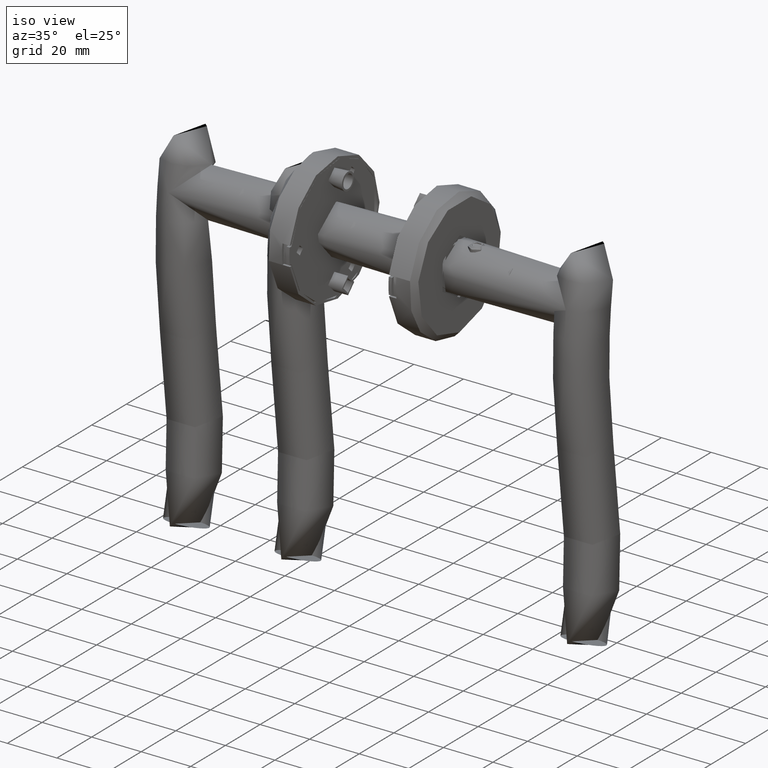
[diagram: clean part render]
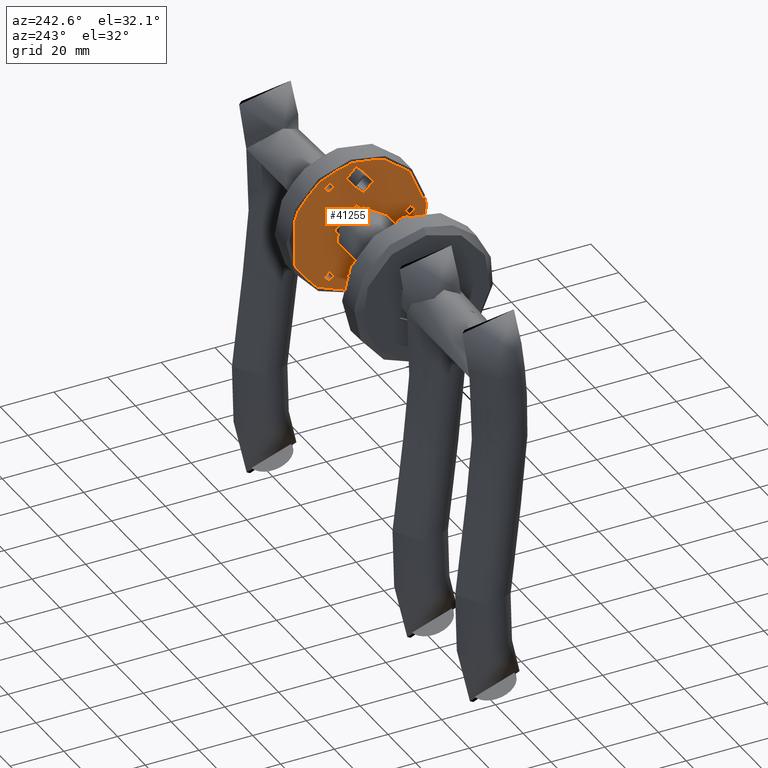
[diagram: tour spotlight — one face highlighted and labeled with its STEP entity id]
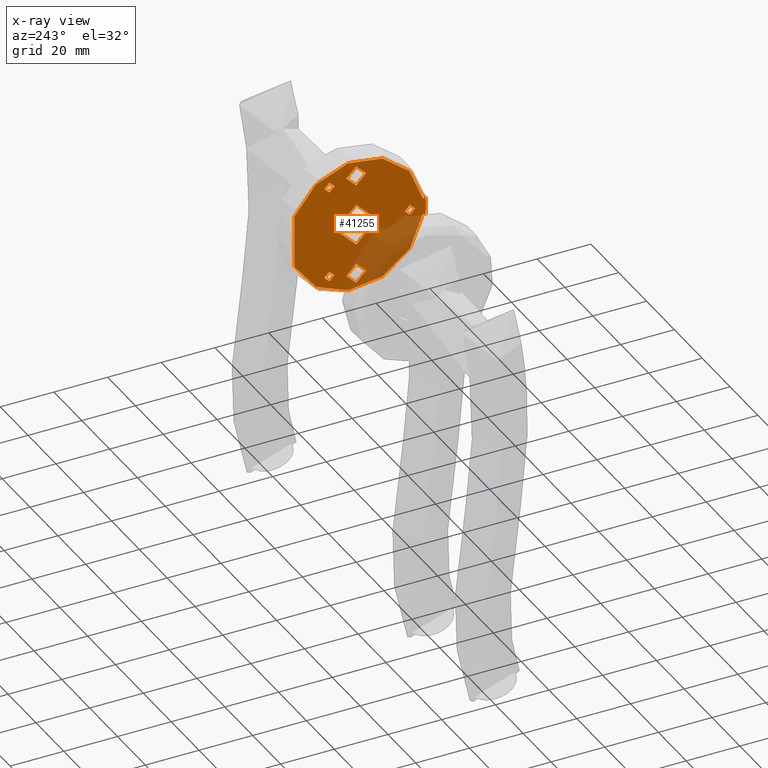
[diagram: x-ray of the same camera — body ghosted, this tour face saturated]
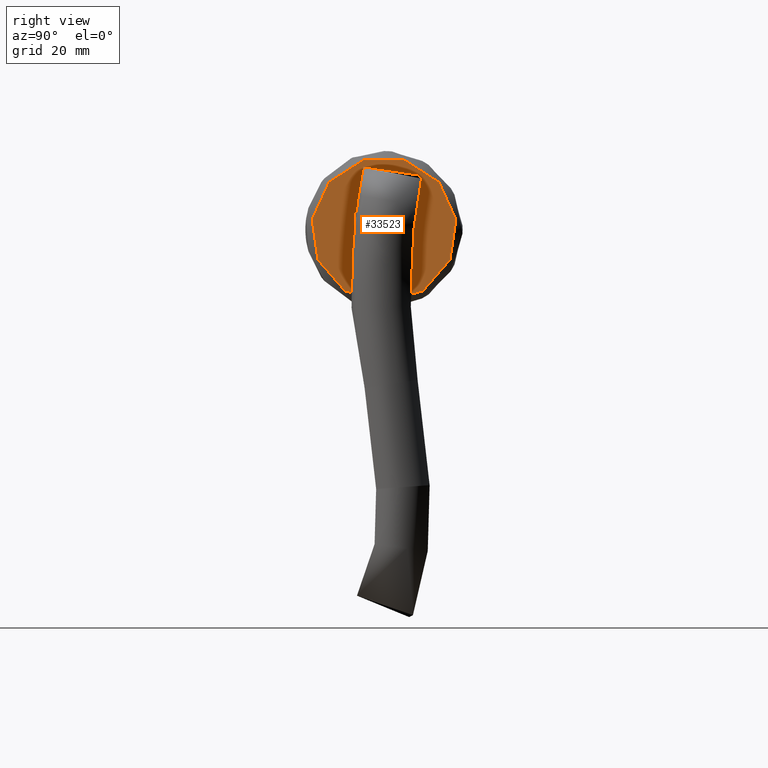
[diagram: tour spotlight — one face highlighted and labeled with its STEP entity id]
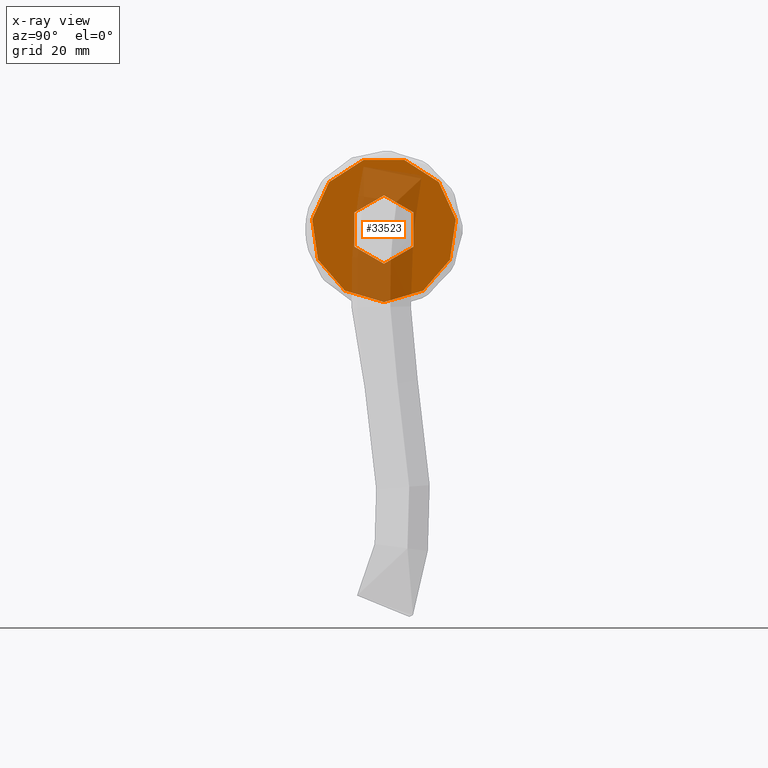
[diagram: x-ray of the same camera — body ghosted, this tour face saturated]
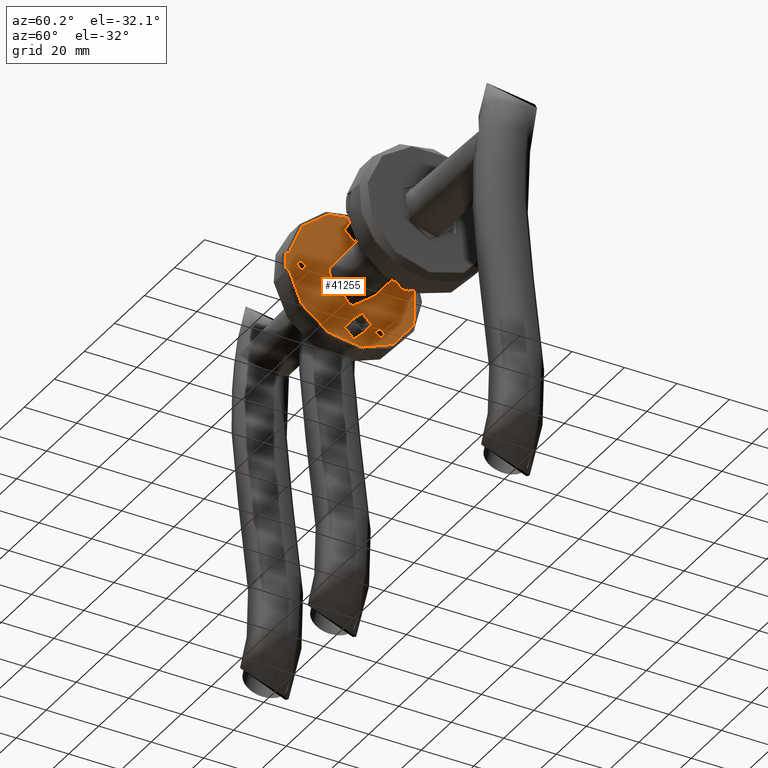
[diagram: tour spotlight — one face highlighted and labeled with its STEP entity id]
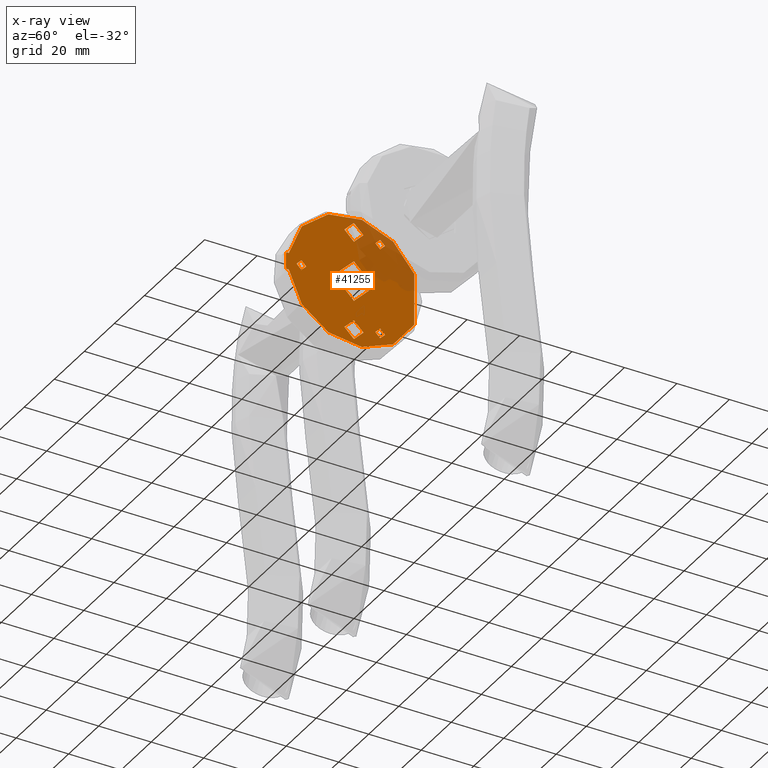
[diagram: x-ray of the same camera — body ghosted, this tour face saturated]
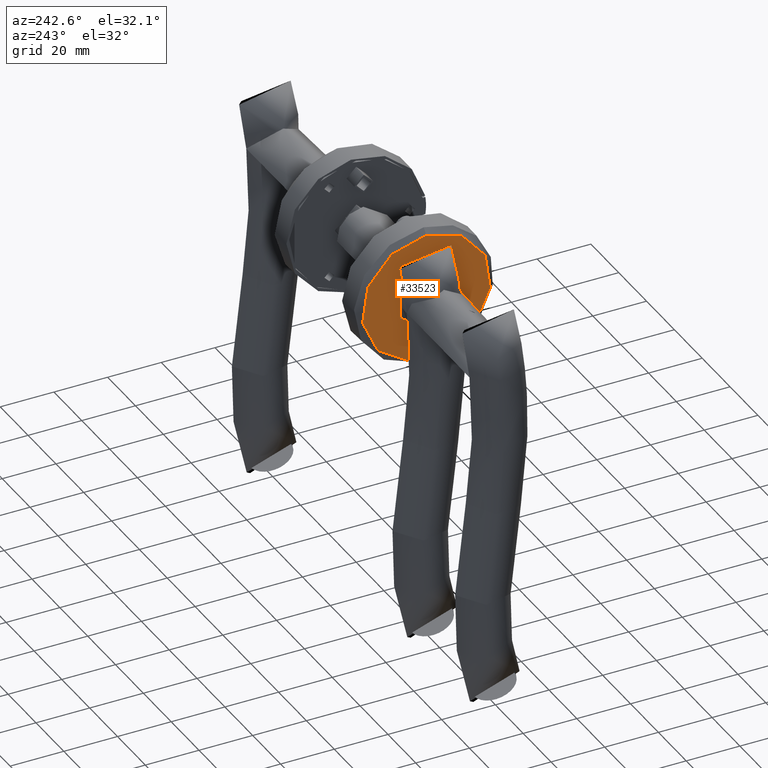
[diagram: tour spotlight — one face highlighted and labeled with its STEP entity id]
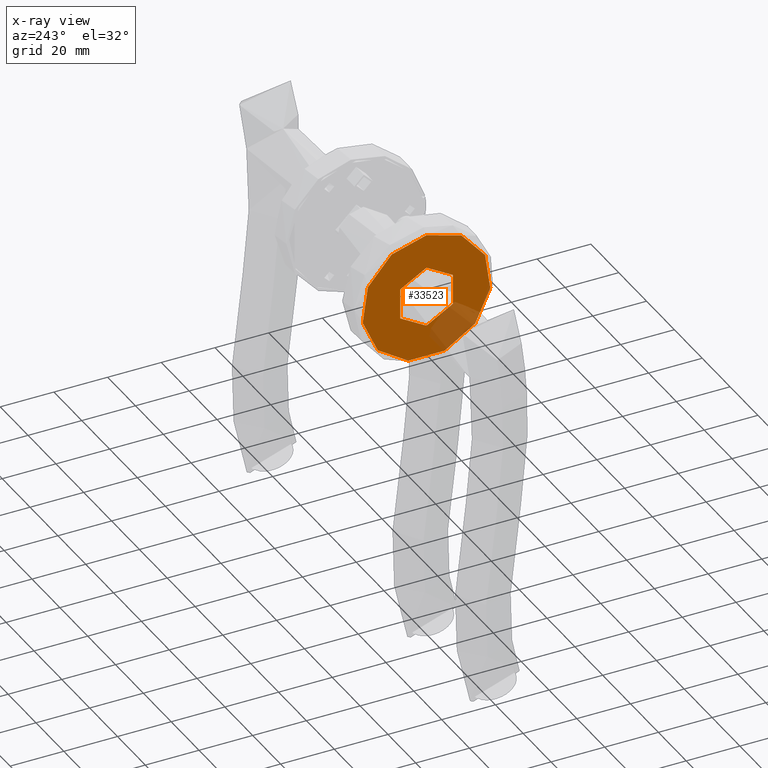
[diagram: x-ray of the same camera — body ghosted, this tour face saturated]
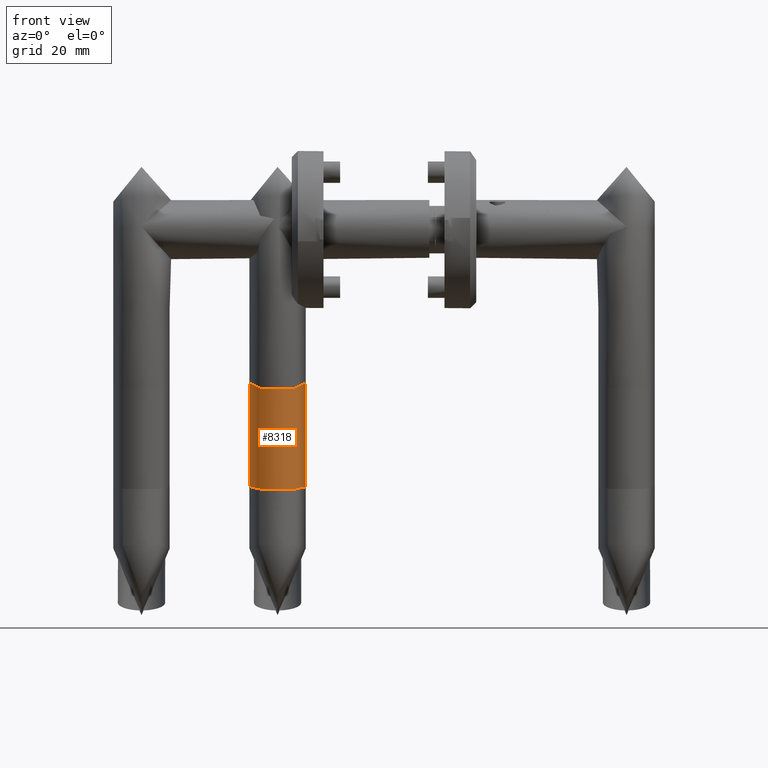
[diagram: tour spotlight — one face highlighted and labeled with its STEP entity id]
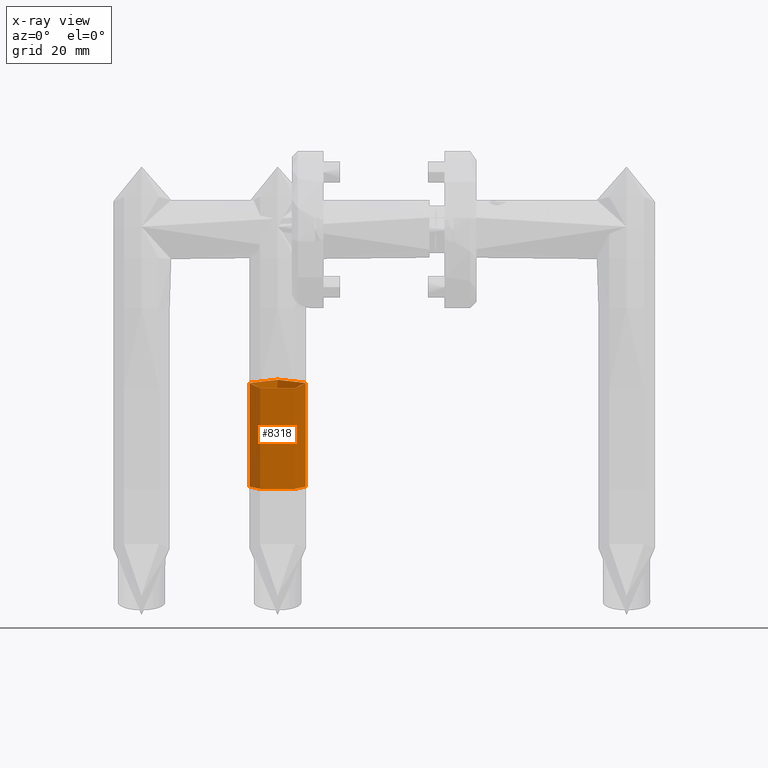
[diagram: x-ray of the same camera — body ghosted, this tour face saturated]
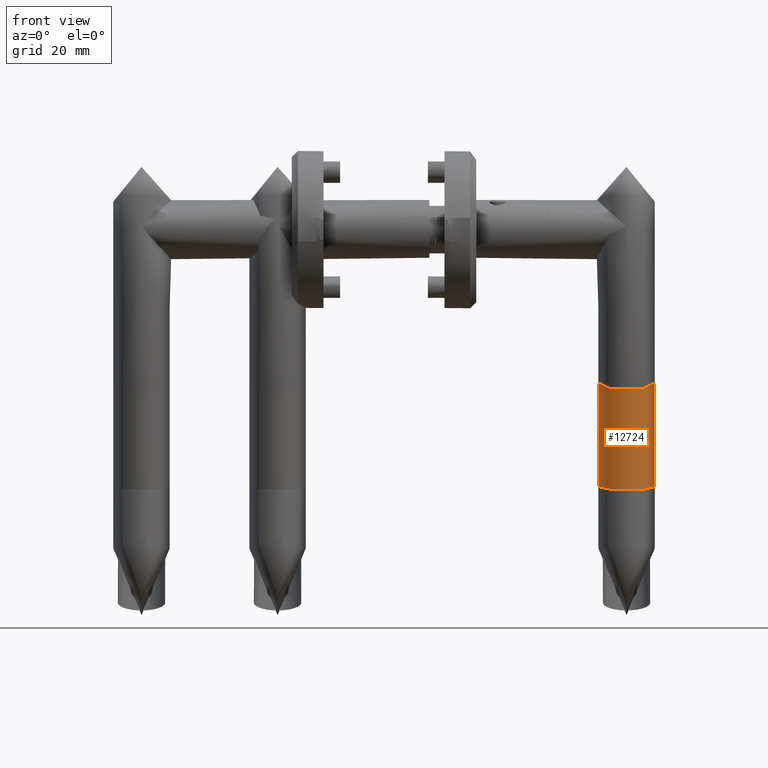
[diagram: tour spotlight — one face highlighted and labeled with its STEP entity id]
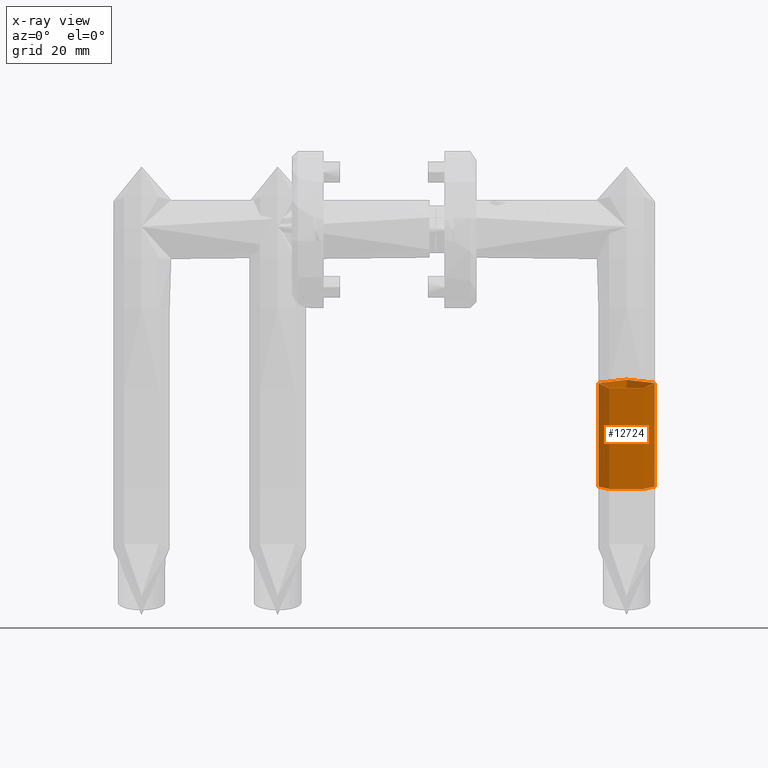
[diagram: x-ray of the same camera — body ghosted, this tour face saturated]
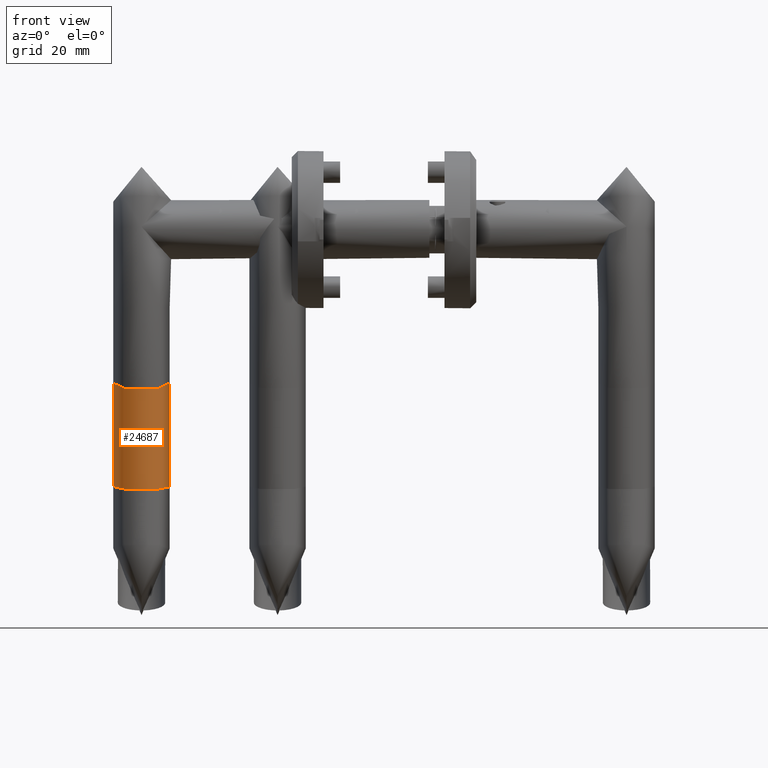
[diagram: tour spotlight — one face highlighted and labeled with its STEP entity id]
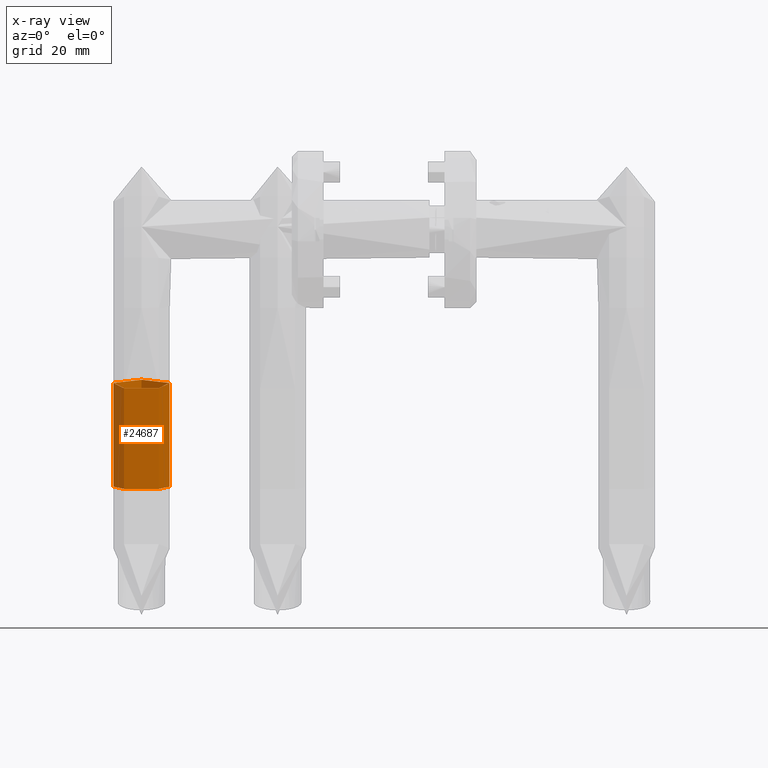
[diagram: x-ray of the same camera — body ghosted, this tour face saturated]
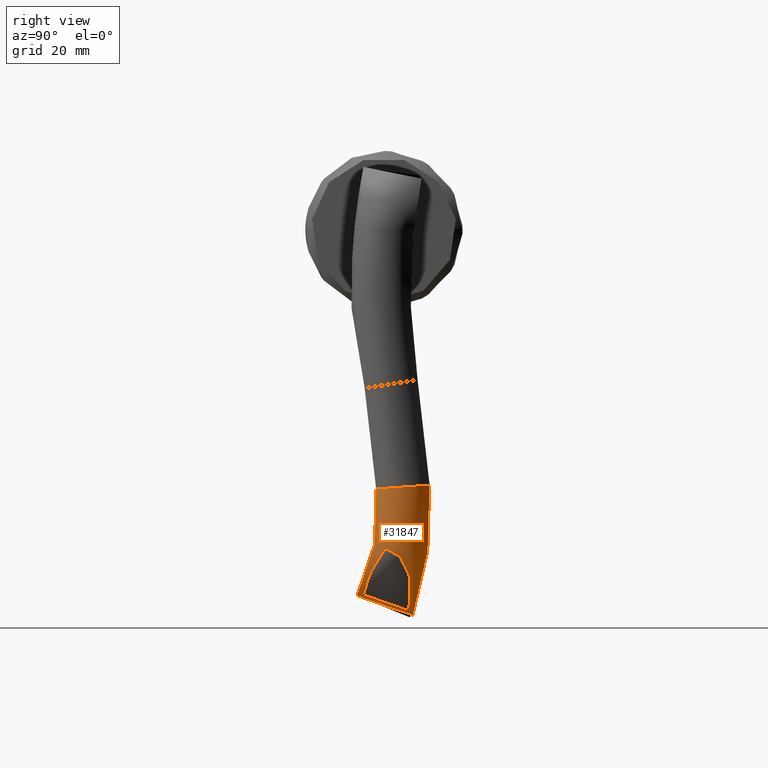
[diagram: tour spotlight — one face highlighted and labeled with its STEP entity id]
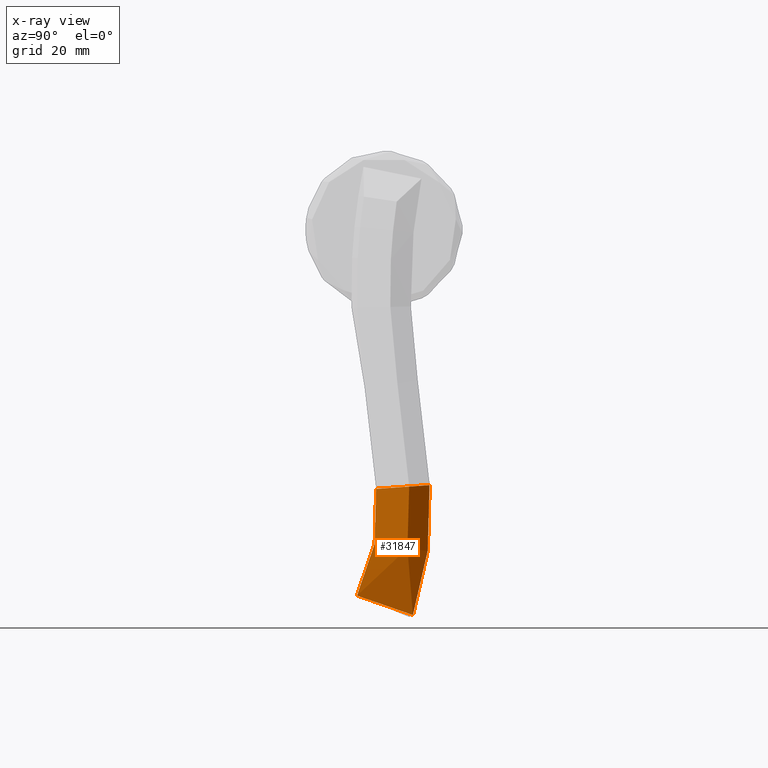
[diagram: x-ray of the same camera — body ghosted, this tour face saturated]
A machine part: a face-by-face anatomy tour. The part has 879 B-rep faces; the first image is the clean iso view, then the 8 largest visible faces are spotlighted one at a time (largest first), each with its STEP entity span.

Face 1 — auxiliary view, entity #41255. An x-ray twin of the same camera follows (body ghosted, this face saturated) — the face is partly hidden behind the body. In plain terms, the highlighted planar face has unit normal (1, -0, 0).
Definition (entity closure, byte-faithful):
#128 = CARTESIAN_POINT ( 'NONE',  ( 9.591663046625443600, 23.00000000000000000, 0.0000000000000000000 ) ) ;
#492 = DIRECTION ( 'NONE',  ( 1.000000000000000000, -3.469446951953611000E-015, 0.0000000000000000000 ) ) ;
#1151 = CIRCLE ( 'NONE', #16660, 1.000000000000000900 ) ;
#1263 = DIRECTION ( 'NONE',  ( 1.290428271008028800E-015, 1.000000000000000000, 0.0000000000000000000 ) ) ;
#1487 = EDGE_CURVE ( 'NONE', #3926, #27425, #37851, .T. ) ;
#2025 = DIRECTION ( 'NONE',  ( -1.000000000000000000, 0.0000000000000000000, 0.0000000000000000000 ) ) ;
#2289 = DIRECTION ( 'NONE',  ( -1.000000000000000000, 0.0000000000000000000, 0.0000000000000000000 ) ) ;
#2297 = CIRCLE ( 'NONE', #15395, 26.00000000000001100 ) ;
#2450 = CIRCLE ( 'NONE', #28033, 3.650000000000000400 ) ;
#2484 = CARTESIAN_POINT ( 'NONE',  ( 0.0000000000000000000, 0.0000000000000000000, 0.0000000000000000000 ) ) ;
#2831 = EDGE_CURVE ( 'NONE', #22195, #22195, #8355, .T. ) ;
#3926 = VERTEX_POINT ( 'NONE', #5954 ) ;
#4578 = DIRECTION ( 'NONE',  ( -1.000000000000000000, 0.0000000000000000000, 0.0000000000000000000 ) ) ;
#4626 = CARTESIAN_POINT ( 'NONE',  ( -9.991315673568168500, 22.91666666666666400, 0.0000000000000000000 ) ) ;
#4644 = FACE_BOUND ( 'NONE', #38150, .T. ) ;
#4733 = CARTESIAN_POINT ( 'NONE',  ( 3.250000000000000000, -25.79607528287976600, 0.0000000000000000000 ) ) ;
#5954 = CARTESIAN_POINT ( 'NONE',  ( 3.250000000000000400, -24.78784984624523700, 0.0000000000000000000 ) ) ;
#6663 = FACE_BOUND ( 'NONE', #8597, .T. ) ;
#7549 = CARTESIAN_POINT ( 'NONE',  ( -7.700000000000000200, 0.0000000000000000000, 0.0000000000000000000 ) ) ;
#7819 = LINE ( 'NONE', #36481, #15336 ) ;
#8227 = DIRECTION ( 'NONE',  ( 0.0000000000000000000, 0.0000000000000000000, 1.000000000000000000 ) ) ;
#8355 = CIRCLE ( 'NONE', #33615, 1.849999999999997400 ) ;
#8597 = EDGE_LOOP ( 'NONE', ( #27299 ) ) ;
#8697 = FACE_OUTER_BOUND ( 'NONE', #28880, .T. ) ;
#8941 = EDGE_CURVE ( 'NONE', #20561, #24295, #29135, .T. ) ;
#9142 = VERTEX_POINT ( 'NONE', #29532 ) ;
#9182 = VERTEX_POINT ( 'NONE', #36250 ) ;
#9316 = DIRECTION ( 'NONE',  ( -1.000000000000000000, 0.0000000000000000000, 0.0000000000000000000 ) ) ;
#9540 = VERTEX_POINT ( 'NONE', #25696 ) ;
#9820 = CARTESIAN_POINT ( 'NONE',  ( -19.17050807568879400, 9.999999999999955600, 0.0000000000000000000 ) ) ;
#10111 = DIRECTION ( 'NONE',  ( 0.0000000000000000000, 0.0000000000000000000, -1.000000000000000000 ) ) ;
#10332 = EDGE_LOOP ( 'NONE', ( #13388 ) ) ;
#10347 = CARTESIAN_POINT ( 'NONE',  ( -9.591663046625434700, 23.00000000000000000, 0.0000000000000000000 ) ) ;
#11446 = CIRCLE ( 'NONE', #15064, 1.850000000000002800 ) ;
#12098 = VECTOR ( 'NONE', #35276, 1000.000000000000000 ) ;
#12155 = CARTESIAN_POINT ( 'NONE',  ( -9.591663046625443600, 22.00000000000000000, 0.0000000000000000000 ) ) ;
#12519 = ORIENTED_EDGE ( 'NONE', *, *, #36103, .T. ) ;
#12619 = AXIS2_PLACEMENT_3D ( 'NONE', #13182, #10111, #13324 ) ;
#13147 = VERTEX_POINT ( 'NONE', #36395 ) ;
#13182 = CARTESIAN_POINT ( 'NONE',  ( 0.0000000000000000000, -20.00000000000000000, 0.0000000000000000000 ) ) ;
#13222 = CARTESIAN_POINT ( 'NONE',  ( 19.00000000000000000, 0.0000000000000000000, 0.0000000000000000000 ) ) ;
#13324 = DIRECTION ( 'NONE',  ( -1.000000000000000000, 0.0000000000000000000, 0.0000000000000000000 ) ) ;
#13371 = DIRECTION ( 'NONE',  ( -1.000000000000000000, 0.0000000000000000000, 0.0000000000000000000 ) ) ;
#13388 = ORIENTED_EDGE ( 'NONE', *, *, #29645, .F. ) ;
#13435 = CIRCLE ( 'NONE', #22284, 1.000000000000000900 ) ;
#14066 = AXIS2_PLACEMENT_3D ( 'NONE', #30794, #15257, #2025 ) ;
#14362 = ORIENTED_EDGE ( 'NONE', *, *, #25258, .T. ) ;
#14608 = ORIENTED_EDGE ( 'NONE', *, *, #2831, .F. ) ;
#14665 = VERTEX_POINT ( 'NONE', #7549 ) ;
#15021 = DIRECTION ( 'NONE',  ( -4.301427570026763200E-016, -1.000000000000000000, 0.0000000000000000000 ) ) ;
#15064 = AXIS2_PLACEMENT_3D ( 'NONE', #18173, #18315, #2289 ) ;
#15257 = DIRECTION ( 'NONE',  ( 0.0000000000000000000, 0.0000000000000000000, -1.000000000000000000 ) ) ;
#15336 = VECTOR ( 'NONE', #1263, 1000.000000000000000 ) ;
#15395 = AXIS2_PLACEMENT_3D ( 'NONE', #27944, #21629, #9316 ) ;
#15691 = CIRCLE ( 'NONE', #40484, 25.00000000000000000 ) ;
#15834 = EDGE_LOOP ( 'NONE', ( #14608 ) ) ;
#16014 = DIRECTION ( 'NONE',  ( 1.000000000000000000, 0.0000000000000000000, -0.0000000000000000000 ) ) ;
#16457 = DIRECTION ( 'NONE',  ( 0.0000000000000000000, 0.0000000000000000000, -1.000000000000000000 ) ) ;
#16660 = AXIS2_PLACEMENT_3D ( 'NONE', #26046, #29544, #492 ) ;
#17177 = ORIENTED_EDGE ( 'NONE', *, *, #19423, .F. ) ;
#18086 = DIRECTION ( 'NONE',  ( -1.000000000000000000, 0.0000000000000000000, 0.0000000000000000000 ) ) ;
#18173 = CARTESIAN_POINT ( 'NONE',  ( 17.32050807568879900, 9.999999999999952000, 0.0000000000000000000 ) ) ;
#18205 = DIRECTION ( 'NONE',  ( 1.000000000000000000, -3.469446951953611000E-015, 0.0000000000000000000 ) ) ;
#18315 = DIRECTION ( 'NONE',  ( 0.0000000000000000000, 0.0000000000000000000, -1.000000000000000000 ) ) ;
#18365 = VERTEX_POINT ( 'NONE', #4626 ) ;
#19104 = PLANE ( 'NONE',  #38214 ) ;
#19228 = FACE_BOUND ( 'NONE', #15834, .T. ) ;
#19423 = EDGE_CURVE ( 'NONE', #9182, #9182, #30516, .T. ) ;
#19517 = DIRECTION ( 'NONE',  ( 0.0000000000000000000, 0.0000000000000000000, 1.000000000000000000 ) ) ;
#19834 = VERTEX_POINT ( 'NONE', #37248 ) ;
#20561 = VERTEX_POINT ( 'NONE', #128 ) ;
#20863 = ORIENTED_EDGE ( 'NONE', *, *, #32471, .F. ) ;
#21629 = DIRECTION ( 'NONE',  ( 0.0000000000000000000, 0.0000000000000000000, -1.000000000000000000 ) ) ;
#21706 = FACE_BOUND ( 'NONE', #10332, .T. ) ;
#21948 = LINE ( 'NONE', #31523, #38965 ) ;
#22152 = VERTEX_POINT ( 'NONE', #39032 ) ;
#22195 = VERTEX_POINT ( 'NONE', #9820 ) ;
#22284 = AXIS2_PLACEMENT_3D ( 'NONE', #12155, #40851, #18205 ) ;
#22319 = CARTESIAN_POINT ( 'NONE',  ( 0.0000000000000000000, 0.0000000000000000000, 0.0000000000000000000 ) ) ;
#22990 = EDGE_CURVE ( 'NONE', #22152, #22152, #2450, .T. ) ;
#23192 = AXIS2_PLACEMENT_3D ( 'NONE', #36830, #27036, #4578 ) ;
#23342 = ORIENTED_EDGE ( 'NONE', *, *, #25983, .F. ) ;
#23921 = DIRECTION ( 'NONE',  ( 1.000000000000000000, 0.0000000000000000000, 0.0000000000000000000 ) ) ;
#24295 = VERTEX_POINT ( 'NONE', #10347 ) ;
#25258 = EDGE_CURVE ( 'NONE', #18365, #24295, #13435, .T. ) ;
#25696 = CARTESIAN_POINT ( 'NONE',  ( -3.249999999999998700, -24.78784984624523700, 0.0000000000000000000 ) ) ;
#25983 = EDGE_CURVE ( 'NONE', #9142, #9142, #11446, .T. ) ;
#26046 = CARTESIAN_POINT ( 'NONE',  ( 9.591663046625443600, 22.00000000000000000, 0.0000000000000000000 ) ) ;
#27036 = DIRECTION ( 'NONE',  ( 0.0000000000000000000, 0.0000000000000000000, -1.000000000000000000 ) ) ;
#27299 = ORIENTED_EDGE ( 'NONE', *, *, #22990, .F. ) ;
#27425 = VERTEX_POINT ( 'NONE', #33430 ) ;
#27944 = CARTESIAN_POINT ( 'NONE',  ( 4.336808689942017700E-016, -2.168404344971008900E-016, 0.0000000000000000000 ) ) ;
#28033 = AXIS2_PLACEMENT_3D ( 'NONE', #13222, #16457, #13371 ) ;
#28098 = EDGE_CURVE ( 'NONE', #19834, #9540, #7819, .T. ) ;
#28880 = EDGE_LOOP ( 'NONE', ( #20863, #14362, #39094, #36896, #35389, #12519, #36658, #36728 ) ) ;
#29135 = LINE ( 'NONE', #41588, #12098 ) ;
#29286 = AXIS2_PLACEMENT_3D ( 'NONE', #2484, #31520, #37670 ) ;
#29532 = CARTESIAN_POINT ( 'NONE',  ( 15.47050807568879800, 9.999999999999952000, 0.0000000000000000000 ) ) ;
#29544 = DIRECTION ( 'NONE',  ( -0.0000000000000000000, -0.0000000000000000000, -1.000000000000000000 ) ) ;
#29645 = EDGE_CURVE ( 'NONE', #13147, #13147, #33858, .T. ) ;
#29724 = VERTEX_POINT ( 'NONE', #4733 ) ;
#29819 = CIRCLE ( 'NONE', #14066, 7.700000000000000200 ) ;
#29850 = EDGE_CURVE ( 'NONE', #14665, #14665, #29819, .T. ) ;
#29883 = EDGE_LOOP ( 'NONE', ( #34417 ) ) ;
#30516 = CIRCLE ( 'NONE', #12619, 1.850000000000001000 ) ;
#30794 = CARTESIAN_POINT ( 'NONE',  ( 0.0000000000000000000, 0.0000000000000000000, 0.0000000000000000000 ) ) ;
#31126 = EDGE_CURVE ( 'NONE', #20561, #27425, #1151, .T. ) ;
#31520 = DIRECTION ( 'NONE',  ( 0.0000000000000000000, 0.0000000000000000000, 1.000000000000000000 ) ) ;
#31523 = CARTESIAN_POINT ( 'NONE',  ( 3.250000000000011100, -1.397963960258702800E-015, 0.0000000000000000000 ) ) ;
#31757 = FACE_BOUND ( 'NONE', #38113, .T. ) ;
#32471 = EDGE_CURVE ( 'NONE', #18365, #9540, #15691, .T. ) ;
#33430 = CARTESIAN_POINT ( 'NONE',  ( 9.991315673568168500, 22.91666666666666400, 0.0000000000000000000 ) ) ;
#33615 = AXIS2_PLACEMENT_3D ( 'NONE', #40587, #33620, #18086 ) ;
#33620 = DIRECTION ( 'NONE',  ( 0.0000000000000000000, 0.0000000000000000000, -1.000000000000000000 ) ) ;
#33858 = CIRCLE ( 'NONE', #23192, 3.650000000000000400 ) ;
#34417 = ORIENTED_EDGE ( 'NONE', *, *, #29850, .F. ) ;
#35276 = DIRECTION ( 'NONE',  ( -1.000000000000000000, 0.0000000000000000000, 0.0000000000000000000 ) ) ;
#35389 = ORIENTED_EDGE ( 'NONE', *, *, #1487, .F. ) ;
#36103 = EDGE_CURVE ( 'NONE', #3926, #29724, #21948, .T. ) ;
#36250 = CARTESIAN_POINT ( 'NONE',  ( -1.850000000000001000, -20.00000000000000000, 0.0000000000000000000 ) ) ;
#36395 = CARTESIAN_POINT ( 'NONE',  ( -22.64999999999999900, 4.653657836759941900E-015, 0.0000000000000000000 ) ) ;
#36481 = CARTESIAN_POINT ( 'NONE',  ( -3.249999999999966200, 4.193891880776051000E-015, 0.0000000000000000000 ) ) ;
#36647 = CARTESIAN_POINT ( 'NONE',  ( 0.0000000000000000000, 0.0000000000000000000, 0.0000000000000000000 ) ) ;
#36658 = ORIENTED_EDGE ( 'NONE', *, *, #37569, .T. ) ;
#36728 = ORIENTED_EDGE ( 'NONE', *, *, #28098, .T. ) ;
#36830 = CARTESIAN_POINT ( 'NONE',  ( -19.00000000000000000, 4.653657836759941900E-015, 0.0000000000000000000 ) ) ;
#36896 = ORIENTED_EDGE ( 'NONE', *, *, #31126, .T. ) ;
#37248 = CARTESIAN_POINT ( 'NONE',  ( -3.250000000000000000, -25.79607528287976600, 0.0000000000000000000 ) ) ;
#37569 = EDGE_CURVE ( 'NONE', #29724, #19834, #2297, .T. ) ;
#37670 = DIRECTION ( 'NONE',  ( 1.000000000000000000, 0.0000000000000000000, 0.0000000000000000000 ) ) ;
#37739 = FACE_BOUND ( 'NONE', #29883, .T. ) ;
#37851 = CIRCLE ( 'NONE', #29286, 25.00000000000000000 ) ;
#38113 = EDGE_LOOP ( 'NONE', ( #17177 ) ) ;
#38150 = EDGE_LOOP ( 'NONE', ( #23342 ) ) ;
#38214 = AXIS2_PLACEMENT_3D ( 'NONE', #22319, #19517, #16014 ) ;
#38965 = VECTOR ( 'NONE', #15021, 1000.000000000000000 ) ;
#39032 = CARTESIAN_POINT ( 'NONE',  ( 15.35000000000000000, 0.0000000000000000000, 0.0000000000000000000 ) ) ;
#39094 = ORIENTED_EDGE ( 'NONE', *, *, #8941, .F. ) ;
#40484 = AXIS2_PLACEMENT_3D ( 'NONE', #36647, #8227, #23921 ) ;
#40587 = CARTESIAN_POINT ( 'NONE',  ( -17.32050807568879600, 9.999999999999955600, 0.0000000000000000000 ) ) ;
#40851 = DIRECTION ( 'NONE',  ( -0.0000000000000000000, -0.0000000000000000000, -1.000000000000000000 ) ) ;
#41255 = ADVANCED_FACE ( 'NONE', ( #31757, #6663, #21706, #19228, #4644, #37739, #8697 ), #19104, .F. ) ;
#41588 = CARTESIAN_POINT ( 'NONE',  ( 9.797958971132716900, 23.00000000000000000, 0.0000000000000000000 ) ) ;

Face 2 — right view, entity #33523. An x-ray twin of the same camera follows (body ghosted, this face saturated) — the face is partly hidden behind the body. In plain terms, the highlighted planar face has unit normal (1, -0, 0).
Definition (entity closure, byte-faithful):
#2458 = DIRECTION ( 'NONE',  ( 1.000000000000000000, 0.0000000000000000000, 0.0000000000000000000 ) ) ;
#2875 = CARTESIAN_POINT ( 'NONE',  ( 0.0000000000000000000, 0.0000000000000000000, 10.50000000000000000 ) ) ;
#3633 = ORIENTED_EDGE ( 'NONE', *, *, #32975, .F. ) ;
#4179 = CIRCLE ( 'NONE', #30288, 24.00000000000000000 ) ;
#7279 = CARTESIAN_POINT ( 'NONE',  ( 0.0000000000000000000, 0.0000000000000000000, 10.50000000000000000 ) ) ;
#7756 = DIRECTION ( 'NONE',  ( 0.0000000000000000000, 0.0000000000000000000, 1.000000000000000000 ) ) ;
#9247 = AXIS2_PLACEMENT_3D ( 'NONE', #7279, #29541, #32750 ) ;
#11674 = VERTEX_POINT ( 'NONE', #32472 ) ;
#12188 = EDGE_CURVE ( 'NONE', #11674, #11674, #4179, .T. ) ;
#12617 = VERTEX_POINT ( 'NONE', #13861 ) ;
#13861 = CARTESIAN_POINT ( 'NONE',  ( 11.30000000000000100, 0.0000000000000000000, 10.50000000000000000 ) ) ;
#14134 = FACE_BOUND ( 'NONE', #14764, .T. ) ;
#14355 = AXIS2_PLACEMENT_3D ( 'NONE', #39373, #7756, #32805 ) ;
#14764 = EDGE_LOOP ( 'NONE', ( #3633 ) ) ;
#18728 = ORIENTED_EDGE ( 'NONE', *, *, #12188, .T. ) ;
#21679 = DIRECTION ( 'NONE',  ( 0.0000000000000000000, 0.0000000000000000000, 1.000000000000000000 ) ) ;
#24189 = CIRCLE ( 'NONE', #14355, 11.30000000000000100 ) ;
#26044 = PLANE ( 'NONE',  #9247 ) ;
#29541 = DIRECTION ( 'NONE',  ( 0.0000000000000000000, 0.0000000000000000000, 1.000000000000000000 ) ) ;
#30288 = AXIS2_PLACEMENT_3D ( 'NONE', #2875, #21679, #2458 ) ;
#32472 = CARTESIAN_POINT ( 'NONE',  ( 24.00000000000000000, 0.0000000000000000000, 10.50000000000000000 ) ) ;
#32750 = DIRECTION ( 'NONE',  ( 1.000000000000000000, 0.0000000000000000000, -0.0000000000000000000 ) ) ;
#32805 = DIRECTION ( 'NONE',  ( 1.000000000000000000, 0.0000000000000000000, 0.0000000000000000000 ) ) ;
#32975 = EDGE_CURVE ( 'NONE', #12617, #12617, #24189, .T. ) ;
#33523 = ADVANCED_FACE ( 'NONE', ( #14134, #33655 ), #26044, .T. ) ;
#33655 = FACE_OUTER_BOUND ( 'NONE', #34572, .T. ) ;
#34572 = EDGE_LOOP ( 'NONE', ( #18728 ) ) ;
#39373 = CARTESIAN_POINT ( 'NONE',  ( 0.0000000000000000000, 0.0000000000000000000, 10.50000000000000000 ) ) ;

Face 3 — auxiliary view, entity #41255. An x-ray twin of the same camera follows (body ghosted, this face saturated) — the face is partly hidden behind the body. In plain terms, the highlighted planar face has unit normal (-1, -0, 0).
Definition (entity closure, byte-faithful):
#128 = CARTESIAN_POINT ( 'NONE',  ( 9.591663046625443600, 23.00000000000000000, 0.0000000000000000000 ) ) ;
#492 = DIRECTION ( 'NONE',  ( 1.000000000000000000, -3.469446951953611000E-015, 0.0000000000000000000 ) ) ;
#1151 = CIRCLE ( 'NONE', #16660, 1.000000000000000900 ) ;
#1263 = DIRECTION ( 'NONE',  ( 1.290428271008028800E-015, 1.000000000000000000, 0.0000000000000000000 ) ) ;
#1487 = EDGE_CURVE ( 'NONE', #3926, #27425, #37851, .T. ) ;
#2025 = DIRECTION ( 'NONE',  ( -1.000000000000000000, 0.0000000000000000000, 0.0000000000000000000 ) ) ;
#2289 = DIRECTION ( 'NONE',  ( -1.000000000000000000, 0.0000000000000000000, 0.0000000000000000000 ) ) ;
#2297 = CIRCLE ( 'NONE', #15395, 26.00000000000001100 ) ;
#2450 = CIRCLE ( 'NONE', #28033, 3.650000000000000400 ) ;
#2484 = CARTESIAN_POINT ( 'NONE',  ( 0.0000000000000000000, 0.0000000000000000000, 0.0000000000000000000 ) ) ;
#2831 = EDGE_CURVE ( 'NONE', #22195, #22195, #8355, .T. ) ;
#3926 = VERTEX_POINT ( 'NONE', #5954 ) ;
#4578 = DIRECTION ( 'NONE',  ( -1.000000000000000000, 0.0000000000000000000, 0.0000000000000000000 ) ) ;
#4626 = CARTESIAN_POINT ( 'NONE',  ( -9.991315673568168500, 22.91666666666666400, 0.0000000000000000000 ) ) ;
#4644 = FACE_BOUND ( 'NONE', #38150, .T. ) ;
#4733 = CARTESIAN_POINT ( 'NONE',  ( 3.250000000000000000, -25.79607528287976600, 0.0000000000000000000 ) ) ;
#5954 = CARTESIAN_POINT ( 'NONE',  ( 3.250000000000000400, -24.78784984624523700, 0.0000000000000000000 ) ) ;
#6663 = FACE_BOUND ( 'NONE', #8597, .T. ) ;
#7549 = CARTESIAN_POINT ( 'NONE',  ( -7.700000000000000200, 0.0000000000000000000, 0.0000000000000000000 ) ) ;
#7819 = LINE ( 'NONE', #36481, #15336 ) ;
#8227 = DIRECTION ( 'NONE',  ( 0.0000000000000000000, 0.0000000000000000000, 1.000000000000000000 ) ) ;
#8355 = CIRCLE ( 'NONE', #33615, 1.849999999999997400 ) ;
#8597 = EDGE_LOOP ( 'NONE', ( #27299 ) ) ;
#8697 = FACE_OUTER_BOUND ( 'NONE', #28880, .T. ) ;
#8941 = EDGE_CURVE ( 'NONE', #20561, #24295, #29135, .T. ) ;
#9142 = VERTEX_POINT ( 'NONE', #29532 ) ;
#9182 = VERTEX_POINT ( 'NONE', #36250 ) ;
#9316 = DIRECTION ( 'NONE',  ( -1.000000000000000000, 0.0000000000000000000, 0.0000000000000000000 ) ) ;
#9540 = VERTEX_POINT ( 'NONE', #25696 ) ;
#9820 = CARTESIAN_POINT ( 'NONE',  ( -19.17050807568879400, 9.999999999999955600, 0.0000000000000000000 ) ) ;
#10111 = DIRECTION ( 'NONE',  ( 0.0000000000000000000, 0.0000000000000000000, -1.000000000000000000 ) ) ;
#10332 = EDGE_LOOP ( 'NONE', ( #13388 ) ) ;
#10347 = CARTESIAN_POINT ( 'NONE',  ( -9.591663046625434700, 23.00000000000000000, 0.0000000000000000000 ) ) ;
#11446 = CIRCLE ( 'NONE', #15064, 1.850000000000002800 ) ;
#12098 = VECTOR ( 'NONE', #35276, 1000.000000000000000 ) ;
#12155 = CARTESIAN_POINT ( 'NONE',  ( -9.591663046625443600, 22.00000000000000000, 0.0000000000000000000 ) ) ;
#12519 = ORIENTED_EDGE ( 'NONE', *, *, #36103, .T. ) ;
#12619 = AXIS2_PLACEMENT_3D ( 'NONE', #13182, #10111, #13324 ) ;
#13147 = VERTEX_POINT ( 'NONE', #36395 ) ;
#13182 = CARTESIAN_POINT ( 'NONE',  ( 0.0000000000000000000, -20.00000000000000000, 0.0000000000000000000 ) ) ;
#13222 = CARTESIAN_POINT ( 'NONE',  ( 19.00000000000000000, 0.0000000000000000000, 0.0000000000000000000 ) ) ;
#13324 = DIRECTION ( 'NONE',  ( -1.000000000000000000, 0.0000000000000000000, 0.0000000000000000000 ) ) ;
#13371 = DIRECTION ( 'NONE',  ( -1.000000000000000000, 0.0000000000000000000, 0.0000000000000000000 ) ) ;
#13388 = ORIENTED_EDGE ( 'NONE', *, *, #29645, .F. ) ;
#13435 = CIRCLE ( 'NONE', #22284, 1.000000000000000900 ) ;
#14066 = AXIS2_PLACEMENT_3D ( 'NONE', #30794, #15257, #2025 ) ;
#14362 = ORIENTED_EDGE ( 'NONE', *, *, #25258, .T. ) ;
#14608 = ORIENTED_EDGE ( 'NONE', *, *, #2831, .F. ) ;
#14665 = VERTEX_POINT ( 'NONE', #7549 ) ;
#15021 = DIRECTION ( 'NONE',  ( -4.301427570026763200E-016, -1.000000000000000000, 0.0000000000000000000 ) ) ;
#15064 = AXIS2_PLACEMENT_3D ( 'NONE', #18173, #18315, #2289 ) ;
#15257 = DIRECTION ( 'NONE',  ( 0.0000000000000000000, 0.0000000000000000000, -1.000000000000000000 ) ) ;
#15336 = VECTOR ( 'NONE', #1263, 1000.000000000000000 ) ;
#15395 = AXIS2_PLACEMENT_3D ( 'NONE', #27944, #21629, #9316 ) ;
#15691 = CIRCLE ( 'NONE', #40484, 25.00000000000000000 ) ;
#15834 = EDGE_LOOP ( 'NONE', ( #14608 ) ) ;
#16014 = DIRECTION ( 'NONE',  ( 1.000000000000000000, 0.0000000000000000000, -0.0000000000000000000 ) ) ;
#16457 = DIRECTION ( 'NONE',  ( 0.0000000000000000000, 0.0000000000000000000, -1.000000000000000000 ) ) ;
#16660 = AXIS2_PLACEMENT_3D ( 'NONE', #26046, #29544, #492 ) ;
#17177 = ORIENTED_EDGE ( 'NONE', *, *, #19423, .F. ) ;
#18086 = DIRECTION ( 'NONE',  ( -1.000000000000000000, 0.0000000000000000000, 0.0000000000000000000 ) ) ;
#18173 = CARTESIAN_POINT ( 'NONE',  ( 17.32050807568879900, 9.999999999999952000, 0.0000000000000000000 ) ) ;
#18205 = DIRECTION ( 'NONE',  ( 1.000000000000000000, -3.469446951953611000E-015, 0.0000000000000000000 ) ) ;
#18315 = DIRECTION ( 'NONE',  ( 0.0000000000000000000, 0.0000000000000000000, -1.000000000000000000 ) ) ;
#18365 = VERTEX_POINT ( 'NONE', #4626 ) ;
#19104 = PLANE ( 'NONE',  #38214 ) ;
#19228 = FACE_BOUND ( 'NONE', #15834, .T. ) ;
#19423 = EDGE_CURVE ( 'NONE', #9182, #9182, #30516, .T. ) ;
#19517 = DIRECTION ( 'NONE',  ( 0.0000000000000000000, 0.0000000000000000000, 1.000000000000000000 ) ) ;
#19834 = VERTEX_POINT ( 'NONE', #37248 ) ;
#20561 = VERTEX_POINT ( 'NONE', #128 ) ;
#20863 = ORIENTED_EDGE ( 'NONE', *, *, #32471, .F. ) ;
#21629 = DIRECTION ( 'NONE',  ( 0.0000000000000000000, 0.0000000000000000000, -1.000000000000000000 ) ) ;
#21706 = FACE_BOUND ( 'NONE', #10332, .T. ) ;
#21948 = LINE ( 'NONE', #31523, #38965 ) ;
#22152 = VERTEX_POINT ( 'NONE', #39032 ) ;
#22195 = VERTEX_POINT ( 'NONE', #9820 ) ;
#22284 = AXIS2_PLACEMENT_3D ( 'NONE', #12155, #40851, #18205 ) ;
#22319 = CARTESIAN_POINT ( 'NONE',  ( 0.0000000000000000000, 0.0000000000000000000, 0.0000000000000000000 ) ) ;
#22990 = EDGE_CURVE ( 'NONE', #22152, #22152, #2450, .T. ) ;
#23192 = AXIS2_PLACEMENT_3D ( 'NONE', #36830, #27036, #4578 ) ;
#23342 = ORIENTED_EDGE ( 'NONE', *, *, #25983, .F. ) ;
#23921 = DIRECTION ( 'NONE',  ( 1.000000000000000000, 0.0000000000000000000, 0.0000000000000000000 ) ) ;
#24295 = VERTEX_POINT ( 'NONE', #10347 ) ;
#25258 = EDGE_CURVE ( 'NONE', #18365, #24295, #13435, .T. ) ;
#25696 = CARTESIAN_POINT ( 'NONE',  ( -3.249999999999998700, -24.78784984624523700, 0.0000000000000000000 ) ) ;
#25983 = EDGE_CURVE ( 'NONE', #9142, #9142, #11446, .T. ) ;
#26046 = CARTESIAN_POINT ( 'NONE',  ( 9.591663046625443600, 22.00000000000000000, 0.0000000000000000000 ) ) ;
#27036 = DIRECTION ( 'NONE',  ( 0.0000000000000000000, 0.0000000000000000000, -1.000000000000000000 ) ) ;
#27299 = ORIENTED_EDGE ( 'NONE', *, *, #22990, .F. ) ;
#27425 = VERTEX_POINT ( 'NONE', #33430 ) ;
#27944 = CARTESIAN_POINT ( 'NONE',  ( 4.336808689942017700E-016, -2.168404344971008900E-016, 0.0000000000000000000 ) ) ;
#28033 = AXIS2_PLACEMENT_3D ( 'NONE', #13222, #16457, #13371 ) ;
#28098 = EDGE_CURVE ( 'NONE', #19834, #9540, #7819, .T. ) ;
#28880 = EDGE_LOOP ( 'NONE', ( #20863, #14362, #39094, #36896, #35389, #12519, #36658, #36728 ) ) ;
#29135 = LINE ( 'NONE', #41588, #12098 ) ;
#29286 = AXIS2_PLACEMENT_3D ( 'NONE', #2484, #31520, #37670 ) ;
#29532 = CARTESIAN_POINT ( 'NONE',  ( 15.47050807568879800, 9.999999999999952000, 0.0000000000000000000 ) ) ;
#29544 = DIRECTION ( 'NONE',  ( -0.0000000000000000000, -0.0000000000000000000, -1.000000000000000000 ) ) ;
#29645 = EDGE_CURVE ( 'NONE', #13147, #13147, #33858, .T. ) ;
#29724 = VERTEX_POINT ( 'NONE', #4733 ) ;
#29819 = CIRCLE ( 'NONE', #14066, 7.700000000000000200 ) ;
#29850 = EDGE_CURVE ( 'NONE', #14665, #14665, #29819, .T. ) ;
#29883 = EDGE_LOOP ( 'NONE', ( #34417 ) ) ;
#30516 = CIRCLE ( 'NONE', #12619, 1.850000000000001000 ) ;
#30794 = CARTESIAN_POINT ( 'NONE',  ( 0.0000000000000000000, 0.0000000000000000000, 0.0000000000000000000 ) ) ;
#31126 = EDGE_CURVE ( 'NONE', #20561, #27425, #1151, .T. ) ;
#31520 = DIRECTION ( 'NONE',  ( 0.0000000000000000000, 0.0000000000000000000, 1.000000000000000000 ) ) ;
#31523 = CARTESIAN_POINT ( 'NONE',  ( 3.250000000000011100, -1.397963960258702800E-015, 0.0000000000000000000 ) ) ;
#31757 = FACE_BOUND ( 'NONE', #38113, .T. ) ;
#32471 = EDGE_CURVE ( 'NONE', #18365, #9540, #15691, .T. ) ;
#33430 = CARTESIAN_POINT ( 'NONE',  ( 9.991315673568168500, 22.91666666666666400, 0.0000000000000000000 ) ) ;
#33615 = AXIS2_PLACEMENT_3D ( 'NONE', #40587, #33620, #18086 ) ;
#33620 = DIRECTION ( 'NONE',  ( 0.0000000000000000000, 0.0000000000000000000, -1.000000000000000000 ) ) ;
#33858 = CIRCLE ( 'NONE', #23192, 3.650000000000000400 ) ;
#34417 = ORIENTED_EDGE ( 'NONE', *, *, #29850, .F. ) ;
#35276 = DIRECTION ( 'NONE',  ( -1.000000000000000000, 0.0000000000000000000, 0.0000000000000000000 ) ) ;
#35389 = ORIENTED_EDGE ( 'NONE', *, *, #1487, .F. ) ;
#36103 = EDGE_CURVE ( 'NONE', #3926, #29724, #21948, .T. ) ;
#36250 = CARTESIAN_POINT ( 'NONE',  ( -1.850000000000001000, -20.00000000000000000, 0.0000000000000000000 ) ) ;
#36395 = CARTESIAN_POINT ( 'NONE',  ( -22.64999999999999900, 4.653657836759941900E-015, 0.0000000000000000000 ) ) ;
#36481 = CARTESIAN_POINT ( 'NONE',  ( -3.249999999999966200, 4.193891880776051000E-015, 0.0000000000000000000 ) ) ;
#36647 = CARTESIAN_POINT ( 'NONE',  ( 0.0000000000000000000, 0.0000000000000000000, 0.0000000000000000000 ) ) ;
#36658 = ORIENTED_EDGE ( 'NONE', *, *, #37569, .T. ) ;
#36728 = ORIENTED_EDGE ( 'NONE', *, *, #28098, .T. ) ;
#36830 = CARTESIAN_POINT ( 'NONE',  ( -19.00000000000000000, 4.653657836759941900E-015, 0.0000000000000000000 ) ) ;
#36896 = ORIENTED_EDGE ( 'NONE', *, *, #31126, .T. ) ;
#37248 = CARTESIAN_POINT ( 'NONE',  ( -3.250000000000000000, -25.79607528287976600, 0.0000000000000000000 ) ) ;
#37569 = EDGE_CURVE ( 'NONE', #29724, #19834, #2297, .T. ) ;
#37670 = DIRECTION ( 'NONE',  ( 1.000000000000000000, 0.0000000000000000000, 0.0000000000000000000 ) ) ;
#37739 = FACE_BOUND ( 'NONE', #29883, .T. ) ;
#37851 = CIRCLE ( 'NONE', #29286, 25.00000000000000000 ) ;
#38113 = EDGE_LOOP ( 'NONE', ( #17177 ) ) ;
#38150 = EDGE_LOOP ( 'NONE', ( #23342 ) ) ;
#38214 = AXIS2_PLACEMENT_3D ( 'NONE', #22319, #19517, #16014 ) ;
#38965 = VECTOR ( 'NONE', #15021, 1000.000000000000000 ) ;
#39032 = CARTESIAN_POINT ( 'NONE',  ( 15.35000000000000000, 0.0000000000000000000, 0.0000000000000000000 ) ) ;
#39094 = ORIENTED_EDGE ( 'NONE', *, *, #8941, .F. ) ;
#40484 = AXIS2_PLACEMENT_3D ( 'NONE', #36647, #8227, #23921 ) ;
#40587 = CARTESIAN_POINT ( 'NONE',  ( -17.32050807568879600, 9.999999999999955600, 0.0000000000000000000 ) ) ;
#40851 = DIRECTION ( 'NONE',  ( -0.0000000000000000000, -0.0000000000000000000, -1.000000000000000000 ) ) ;
#41255 = ADVANCED_FACE ( 'NONE', ( #31757, #6663, #21706, #19228, #4644, #37739, #8697 ), #19104, .F. ) ;
#41588 = CARTESIAN_POINT ( 'NONE',  ( 9.797958971132716900, 23.00000000000000000, 0.0000000000000000000 ) ) ;

Face 4 — auxiliary view, entity #33523. An x-ray twin of the same camera follows (body ghosted, this face saturated) — the face is partly hidden behind the body. In plain terms, the highlighted planar face has unit normal (-1, -0, 0).
Definition (entity closure, byte-faithful):
#2458 = DIRECTION ( 'NONE',  ( 1.000000000000000000, 0.0000000000000000000, 0.0000000000000000000 ) ) ;
#2875 = CARTESIAN_POINT ( 'NONE',  ( 0.0000000000000000000, 0.0000000000000000000, 10.50000000000000000 ) ) ;
#3633 = ORIENTED_EDGE ( 'NONE', *, *, #32975, .F. ) ;
#4179 = CIRCLE ( 'NONE', #30288, 24.00000000000000000 ) ;
#7279 = CARTESIAN_POINT ( 'NONE',  ( 0.0000000000000000000, 0.0000000000000000000, 10.50000000000000000 ) ) ;
#7756 = DIRECTION ( 'NONE',  ( 0.0000000000000000000, 0.0000000000000000000, 1.000000000000000000 ) ) ;
#9247 = AXIS2_PLACEMENT_3D ( 'NONE', #7279, #29541, #32750 ) ;
#11674 = VERTEX_POINT ( 'NONE', #32472 ) ;
#12188 = EDGE_CURVE ( 'NONE', #11674, #11674, #4179, .T. ) ;
#12617 = VERTEX_POINT ( 'NONE', #13861 ) ;
#13861 = CARTESIAN_POINT ( 'NONE',  ( 11.30000000000000100, 0.0000000000000000000, 10.50000000000000000 ) ) ;
#14134 = FACE_BOUND ( 'NONE', #14764, .T. ) ;
#14355 = AXIS2_PLACEMENT_3D ( 'NONE', #39373, #7756, #32805 ) ;
#14764 = EDGE_LOOP ( 'NONE', ( #3633 ) ) ;
#18728 = ORIENTED_EDGE ( 'NONE', *, *, #12188, .T. ) ;
#21679 = DIRECTION ( 'NONE',  ( 0.0000000000000000000, 0.0000000000000000000, 1.000000000000000000 ) ) ;
#24189 = CIRCLE ( 'NONE', #14355, 11.30000000000000100 ) ;
#26044 = PLANE ( 'NONE',  #9247 ) ;
#29541 = DIRECTION ( 'NONE',  ( 0.0000000000000000000, 0.0000000000000000000, 1.000000000000000000 ) ) ;
#30288 = AXIS2_PLACEMENT_3D ( 'NONE', #2875, #21679, #2458 ) ;
#32472 = CARTESIAN_POINT ( 'NONE',  ( 24.00000000000000000, 0.0000000000000000000, 10.50000000000000000 ) ) ;
#32750 = DIRECTION ( 'NONE',  ( 1.000000000000000000, 0.0000000000000000000, -0.0000000000000000000 ) ) ;
#32805 = DIRECTION ( 'NONE',  ( 1.000000000000000000, 0.0000000000000000000, 0.0000000000000000000 ) ) ;
#32975 = EDGE_CURVE ( 'NONE', #12617, #12617, #24189, .T. ) ;
#33523 = ADVANCED_FACE ( 'NONE', ( #14134, #33655 ), #26044, .T. ) ;
#33655 = FACE_OUTER_BOUND ( 'NONE', #34572, .T. ) ;
#34572 = EDGE_LOOP ( 'NONE', ( #18728 ) ) ;
#39373 = CARTESIAN_POINT ( 'NONE',  ( 0.0000000000000000000, 0.0000000000000000000, 10.50000000000000000 ) ) ;

Face 5 — front view, entity #8318. An x-ray twin of the same camera follows (body ghosted, this face saturated) — the face is partly hidden behind the body. In plain terms, the highlighted toroidal blend (fillet) surface has major radius 400 mm and minor (blend) radius 9.8 mm.
Definition (entity closure, byte-faithful):
#2750 = DIRECTION ( 'NONE',  ( 0.1558471930902018100, 0.9877811763775949900, 0.0000000000000000000 ) ) ;
#2792 = DIRECTION ( 'NONE',  ( 0.07082954865716770100, 0.9974884335354581300, 0.0000000000000000000 ) ) ;
#3072 = AXIS2_PLACEMENT_3D ( 'NONE', #11345, #5136, #17922 ) ;
#5136 = DIRECTION ( 'NONE',  ( 0.0000000000000000000, 0.0000000000000000000, 1.000000000000000000 ) ) ;
#5798 = EDGE_LOOP ( 'NONE', ( #32691 ) ) ;
#6340 = CIRCLE ( 'NONE', #27928, 9.800000000000006000 ) ;
#8318 = ADVANCED_FACE ( 'NONE', ( #35681, #10147 ), #22653, .T. ) ;
#10147 = FACE_OUTER_BOUND ( 'NONE', #40031, .T. ) ;
#11345 = CARTESIAN_POINT ( 'NONE',  ( -123.3318194628666800, -393.6735820088355200, 50.19999999999999600 ) ) ;
#13447 = CARTESIAN_POINT ( 'NONE',  ( -94.30587042315968900, 15.09717805399581200, 50.19999999999999600 ) ) ;
#15181 = CARTESIAN_POINT ( 'NONE',  ( -94.99999999999992900, 5.321791405348316900, 50.19999999999999600 ) ) ;
#17922 = DIRECTION ( 'NONE',  ( 1.000000000000000000, 0.0000000000000000000, 0.0000000000000000000 ) ) ;
#20026 = ORIENTED_EDGE ( 'NONE', *, *, #26460, .T. ) ;
#22653 = TOROIDAL_SURFACE ( 'NONE', #3072, 400.0000000000005700, 9.800000000000006000 ) ;
#26125 = AXIS2_PLACEMENT_3D ( 'NONE', #28280, #31510, #2750 ) ;
#26456 = CARTESIAN_POINT ( 'NONE',  ( -59.46563973450202000, 11.11914407070352000, 50.19999999999999600 ) ) ;
#26460 = EDGE_CURVE ( 'NONE', #34672, #34672, #6340, .T. ) ;
#27928 = AXIS2_PLACEMENT_3D ( 'NONE', #15181, #37832, #2792 ) ;
#28280 = CARTESIAN_POINT ( 'NONE',  ( -60.99294222678599900, 1.438888542203082800, 50.19999999999999600 ) ) ;
#28745 = EDGE_CURVE ( 'NONE', #40182, #40182, #33898, .T. ) ;
#31510 = DIRECTION ( 'NONE',  ( 0.9877811763775949900, -0.1558471930902016700, 0.0000000000000000000 ) ) ;
#32691 = ORIENTED_EDGE ( 'NONE', *, *, #28745, .F. ) ;
#33898 = CIRCLE ( 'NONE', #26125, 9.800000000000006000 ) ;
#34672 = VERTEX_POINT ( 'NONE', #13447 ) ;
#35681 = FACE_OUTER_BOUND ( 'NONE', #5798, .T. ) ;
#37832 = DIRECTION ( 'NONE',  ( 0.9974884335354582400, -0.07082954865716700700, 0.0000000000000000000 ) ) ;
#40031 = EDGE_LOOP ( 'NONE', ( #20026 ) ) ;
#40182 = VERTEX_POINT ( 'NONE', #26456 ) ;

Face 6 — front view, entity #12724. An x-ray twin of the same camera follows (body ghosted, this face saturated) — the face is partly hidden behind the body. In plain terms, the highlighted toroidal blend (fillet) surface has major radius 400 mm and minor (blend) radius 9.8 mm.
Definition (entity closure, byte-faithful):
#3696 = AXIS2_PLACEMENT_3D ( 'NONE', #13685, #23337, #26555 ) ;
#8213 = FACE_OUTER_BOUND ( 'NONE', #21938, .T. ) ;
#10585 = EDGE_CURVE ( 'NONE', #18710, #18710, #11326, .T. ) ;
#11326 = CIRCLE ( 'NONE', #36428, 9.800000000000006000 ) ;
#11412 = EDGE_LOOP ( 'NONE', ( #17012 ) ) ;
#12202 = CARTESIAN_POINT ( 'NONE',  ( -123.3318194628665900, -393.6735820088355200, -65.19999999999998900 ) ) ;
#12724 = ADVANCED_FACE ( 'NONE', ( #8213, #23228 ), #22731, .T. ) ;
#12884 = CARTESIAN_POINT ( 'NONE',  ( -59.46563973450202000, 11.11914407070353100, -65.20000000000003100 ) ) ;
#13061 = CIRCLE ( 'NONE', #3696, 9.800000000000006000 ) ;
#13685 = CARTESIAN_POINT ( 'NONE',  ( -60.99294222678599900, 1.438888542203093300, -65.20000000000003100 ) ) ;
#14529 = DIRECTION ( 'NONE',  ( -0.9974884335354582400, 0.07082954865716717400, 2.120063682781469600E-030 ) ) ;
#17012 = ORIENTED_EDGE ( 'NONE', *, *, #10585, .F. ) ;
#17436 = AXIS2_PLACEMENT_3D ( 'NONE', #12202, #18938, #41176 ) ;
#17793 = EDGE_CURVE ( 'NONE', #34205, #34205, #13061, .T. ) ;
#18710 = VERTEX_POINT ( 'NONE', #32068 ) ;
#18938 = DIRECTION ( 'NONE',  ( 2.440538425527505300E-030, 3.478699912138159800E-030, -1.000000000000000000 ) ) ;
#21489 = ORIENTED_EDGE ( 'NONE', *, *, #17793, .T. ) ;
#21938 = EDGE_LOOP ( 'NONE', ( #21489 ) ) ;
#22731 = TOROIDAL_SURFACE ( 'NONE', #17436, 400.0000000000005700, 9.800000000000006000 ) ;
#23228 = FACE_OUTER_BOUND ( 'NONE', #11412, .T. ) ;
#23337 = DIRECTION ( 'NONE',  ( -0.9877811763775949900, 0.1558471930902018400, 1.848892746611746400E-030 ) ) ;
#26555 = DIRECTION ( 'NONE',  ( 0.1558471930902018100, 0.9877811763775949900, 0.0000000000000000000 ) ) ;
#32068 = CARTESIAN_POINT ( 'NONE',  ( -94.30587042315963200, 15.09717805399582800, -65.19999999999998900 ) ) ;
#34205 = VERTEX_POINT ( 'NONE', #12884 ) ;
#36428 = AXIS2_PLACEMENT_3D ( 'NONE', #40380, #14529, #36919 ) ;
#36919 = DIRECTION ( 'NONE',  ( 0.07082954865716628600, 0.9974884335354581300, 0.0000000000000000000 ) ) ;
#40380 = CARTESIAN_POINT ( 'NONE',  ( -94.99999999999985800, 5.321791405348331900, -65.19999999999998900 ) ) ;
#41176 = DIRECTION ( 'NONE',  ( 1.000000000000000000, -1.354591294076567700E-016, 2.440538425527504600E-030 ) ) ;

Face 7 — front view, entity #24687. An x-ray twin of the same camera follows (body ghosted, this face saturated) — the face is partly hidden behind the body. In plain terms, the highlighted toroidal blend (fillet) surface has major radius 400 mm and minor (blend) radius 9.8 mm.
Definition (entity closure, byte-faithful):
#49 = CARTESIAN_POINT ( 'NONE',  ( -94.30587042315966100, 15.09717805399581200, 50.20000000000003800 ) ) ;
#579 = VERTEX_POINT ( 'NONE', #49 ) ;
#807 = DIRECTION ( 'NONE',  ( 0.1558471930902018100, 0.9877811763775949900, 0.0000000000000000000 ) ) ;
#2336 = AXIS2_PLACEMENT_3D ( 'NONE', #16069, #19711, #6951 ) ;
#2799 = EDGE_LOOP ( 'NONE', ( #37866 ) ) ;
#4430 = CARTESIAN_POINT ( 'NONE',  ( -59.46563973450202000, 11.11914407070352000, 50.20000000000003800 ) ) ;
#6951 = DIRECTION ( 'NONE',  ( 0.07082954865716628600, 0.9974884335354581300, 0.0000000000000000000 ) ) ;
#7192 = CARTESIAN_POINT ( 'NONE',  ( -123.3318194628666800, -393.6735820088355200, 50.20000000000003800 ) ) ;
#7957 = AXIS2_PLACEMENT_3D ( 'NONE', #16871, #20067, #807 ) ;
#10431 = DIRECTION ( 'NONE',  ( 1.000000000000000000, -7.670037326677482100E-065, -1.972152263052526900E-031 ) ) ;
#12225 = EDGE_CURVE ( 'NONE', #579, #579, #13749, .T. ) ;
#13612 = ORIENTED_EDGE ( 'NONE', *, *, #12225, .T. ) ;
#13749 = CIRCLE ( 'NONE', #2336, 9.800000000000006000 ) ;
#14508 = FACE_OUTER_BOUND ( 'NONE', #2799, .T. ) ;
#15497 = TOROIDAL_SURFACE ( 'NONE', #16325, 400.0000000000005700, 9.800000000000006000 ) ;
#15650 = VERTEX_POINT ( 'NONE', #4430 ) ;
#16069 = CARTESIAN_POINT ( 'NONE',  ( -94.99999999999988600, 5.321791405348316900, 50.20000000000003800 ) ) ;
#16208 = CIRCLE ( 'NONE', #7957, 9.800000000000006000 ) ;
#16325 = AXIS2_PLACEMENT_3D ( 'NONE', #7192, #29589, #10431 ) ;
#16871 = CARTESIAN_POINT ( 'NONE',  ( -60.99294222678599900, 1.438888542203082800, 50.20000000000003800 ) ) ;
#19711 = DIRECTION ( 'NONE',  ( 0.9974884335354582400, -0.07082954865716700700, 1.848892746611746900E-031 ) ) ;
#20067 = DIRECTION ( 'NONE',  ( 0.9877811763775949900, -0.1558471930902016700, 2.095411779493312600E-031 ) ) ;
#24677 = EDGE_LOOP ( 'NONE', ( #13612 ) ) ;
#24687 = ADVANCED_FACE ( 'NONE', ( #14508, #32504 ), #15497, .T. ) ;
#29589 = DIRECTION ( 'NONE',  ( 1.972152263052526900E-031, 3.889170968374258800E-034, 1.000000000000000000 ) ) ;
#32504 = FACE_OUTER_BOUND ( 'NONE', #24677, .T. ) ;
#37866 = ORIENTED_EDGE ( 'NONE', *, *, #41422, .F. ) ;
#41422 = EDGE_CURVE ( 'NONE', #15650, #15650, #16208, .T. ) ;

Face 8 — right view, entity #31847. An x-ray twin of the same camera follows (body ghosted, this face saturated) — the face is partly hidden behind the body. In plain terms, the highlighted toroidal blend (fillet) surface has major radius 100 mm and minor (blend) radius 9.8 mm.
Definition (entity closure, byte-faithful):
#509 = CARTESIAN_POINT ( 'NONE',  ( -134.4740844808395700, 1.533211117743789900, -74.93705712894377800 ) ) ;
#792 = CARTESIAN_POINT ( 'NONE',  ( -130.8385886507167900, -8.932947522813652300, -64.54547159850700700 ) ) ;
#925 = CARTESIAN_POINT ( 'NONE',  ( -133.8412008356639500, -0.2882450497194279400, -74.99983444358025500 ) ) ;
#1064 = CARTESIAN_POINT ( 'NONE',  ( -131.0078186050759800, -8.445574890725412200, -62.04439093759060600 ) ) ;
#1357 = CARTESIAN_POINT ( 'NONE',  ( -132.0916399017695500, -5.324669796115935000, -57.40934675098863200 ) ) ;
#1779 = CARTESIAN_POINT ( 'NONE',  ( -133.2203663737681400, -2.075238755135464100, -55.72953833911653000 ) ) ;
#3770 = CARTESIAN_POINT ( 'NONE',  ( -131.6312908856972700, -6.650169097424900100, -71.67599071778109000 ) ) ;
#3903 = CARTESIAN_POINT ( 'NONE',  ( -137.1622993623541900, 9.267841594830017000, -67.75036262866007100 ) ) ;
#4042 = CARTESIAN_POINT ( 'NONE',  ( -132.6271956339884400, -3.782789253097093200, -74.00622119506695600 ) ) ;
#4184 = CARTESIAN_POINT ( 'NONE',  ( -132.0934562589776500, -5.319440292531984600, -72.99452834347134500 ) ) ;
#4327 = CARTESIAN_POINT ( 'NONE',  ( -137.0299040370925600, 8.886983007033901300, -68.96543911801057900 ) ) ;
#5036 = CARTESIAN_POINT ( 'NONE',  ( -133.6347832177671600, -0.8823661205560609000, -55.46226500349675300 ) ) ;
#6625 = VERTEX_POINT ( 'NONE', #29952 ) ;
#6894 = EDGE_LOOP ( 'NONE', ( #20573 ) ) ;
#7017 = CARTESIAN_POINT ( 'NONE',  ( -131.9279714820251300, -5.795912573221512400, -72.58060962158165800 ) ) ;
#7160 = CARTESIAN_POINT ( 'NONE',  ( -134.8844443954502000, 2.714122961431382200, -74.67333815134165300 ) ) ;
#7441 = CARTESIAN_POINT ( 'NONE',  ( -136.1754825068585700, 6.428907837619759000, -72.57444401245622600 ) ) ;
#7577 = CARTESIAN_POINT ( 'NONE',  ( -132.9195289871491900, -2.941233390931096400, -74.37564371116671700 ) ) ;
#7729 = CARTESIAN_POINT ( 'NONE',  ( -132.8217753795686600, -3.222633932605514200, -56.13106377182578700 ) ) ;
#8015 = CARTESIAN_POINT ( 'NONE',  ( -134.5789010367842600, 1.834848714268670200, -55.52601281831076800 ) ) ;
#8286 = CARTESIAN_POINT ( 'NONE',  ( -133.3235224645828800, -1.778303776870508100, -55.65070634332725100 ) ) ;
#10397 = CARTESIAN_POINT ( 'NONE',  ( -137.2505436632808700, 9.521688678409251600, -66.48706898686971600 ) ) ;
#10533 = CARTESIAN_POINT ( 'NONE',  ( -135.6637145493262200, 4.956462278983785600, -73.70917250445813800 ) ) ;
#10585 = EDGE_CURVE ( 'NONE', #18710, #18710, #11326, .T. ) ;
#10678 = CARTESIAN_POINT ( 'NONE',  ( -130.8595667825449300, -8.872530107298052500, -63.90912772656323400 ) ) ;
#10817 = CARTESIAN_POINT ( 'NONE',  ( -136.8408554178654400, 8.343137139713952900, -70.10740291444174900 ) ) ;
#10958 = CARTESIAN_POINT ( 'NONE',  ( -134.4738769912306700, 1.532606323808025200, -55.47845839964754300 ) ) ;
#11248 = CARTESIAN_POINT ( 'NONE',  ( -136.0149819239575200, 5.967135855057129000, -57.40479340325519100 ) ) ;
#11326 = CIRCLE ( 'NONE', #36428, 9.800000000000006000 ) ;
#11389 = CARTESIAN_POINT ( 'NONE',  ( -136.9398229469338400, 8.627843704896001500, -60.85543902642021400 ) ) ;
#11519 = CARTESIAN_POINT ( 'NONE',  ( -135.0886688341377600, 3.301809027693109100, -55.89851876511694000 ) ) ;
#11745 = EDGE_LOOP ( 'NONE', ( #27181 ) ) ;
#12578 = AXIS2_PLACEMENT_3D ( 'NONE', #34296, #18213, #37119 ) ;
#13478 = CARTESIAN_POINT ( 'NONE',  ( -133.3234007152127300, -1.778654288655564500, -74.74909754602771300 ) ) ;
#13613 = CARTESIAN_POINT ( 'NONE',  ( -131.2637690617187000, -7.708485074500164700, -60.28651927299498000 ) ) ;
#13753 = CARTESIAN_POINT ( 'NONE',  ( -135.4789319493336300, 4.424781471889923900, -74.00965203948803200 ) ) ;
#13892 = CARTESIAN_POINT ( 'NONE',  ( -136.4760305675288000, 7.293589751568070800, -71.68208467119808300 ) ) ;
#14032 = CARTESIAN_POINT ( 'NONE',  ( -137.1008781753723700, 9.091153203175201400, -68.36406478730437200 ) ) ;
#14175 = CARTESIAN_POINT ( 'NONE',  ( -136.6112789533504800, 7.682685676180291500, -59.21928112376627200 ) ) ;
#14218 = FACE_OUTER_BOUND ( 'NONE', #11745, .T. ) ;
#14321 = CARTESIAN_POINT ( 'NONE',  ( -134.1579501930943900, 0.6233856062550498000, -55.39990282489544200 ) ) ;
#14475 = CARTESIAN_POINT ( 'NONE',  ( -136.8401799616571300, 8.341193999118301500, -60.28897677311195500 ) ) ;
#14529 = DIRECTION ( 'NONE',  ( -0.9974884335354582400, 0.07082954865716717400, 2.120063682781469600E-030 ) ) ;
#14741 = CARTESIAN_POINT ( 'NONE',  ( -134.2630721465756100, 0.9259266780645151200, -55.41538493216093300 ) ) ;
#16715 = CARTESIAN_POINT ( 'NONE',  ( -131.4388486446661900, -7.204319461896742100, -59.48807025130555100 ) ) ;
#17124 = CARTESIAN_POINT ( 'NONE',  ( -136.0117395213049700, 5.957801691618351800, -72.98329180600234200 ) ) ;
#17686 = CARTESIAN_POINT ( 'NONE',  ( -137.2713942788151700, 9.581667550076838700, -64.55276433332603900 ) ) ;
#17823 = CARTESIAN_POINT ( 'NONE',  ( -136.1774582750522600, 6.434595683732704100, -57.80955593511576000 ) ) ;
#18213 = DIRECTION ( 'NONE',  ( 2.440538425527505300E-030, 3.478699912138159800E-030, -1.000000000000000000 ) ) ;
#18710 = VERTEX_POINT ( 'NONE', #32068 ) ;
#19775 = CARTESIAN_POINT ( 'NONE',  ( -135.0867769801566600, 3.296358606018747300, -74.48685882853205000 ) ) ;
#19921 = CARTESIAN_POINT ( 'NONE',  ( -131.7072264951449400, -6.431521451365912700, -58.49212354633696300 ) ) ;
#20052 = CARTESIAN_POINT ( 'NONE',  ( -132.4425550903278600, -4.314356701547026800, -73.70503834560685200 ) ) ;
#20188 = CARTESIAN_POINT ( 'NONE',  ( -134.7824555502190500, 2.420630773650551200, -74.75080105497684700 ) ) ;
#20323 = CARTESIAN_POINT ( 'NONE',  ( -131.1682889898215800, -7.983446958773047400, -69.53599037197601300 ) ) ;
#20465 = CARTESIAN_POINT ( 'NONE',  ( -133.0191027104699200, -2.654593366463257300, -55.91573145400595700 ) ) ;
#20573 = ORIENTED_EDGE ( 'NONE', *, *, #28388, .F. ) ;
#20602 = CARTESIAN_POINT ( 'NONE',  ( -133.8434011630974700, -0.2819123442237099200, -55.40019572331688400 ) ) ;
#22991 = CARTESIAN_POINT ( 'NONE',  ( -134.2653210898901600, 0.9324078507738231500, -75.00016491543603100 ) ) ;
#23267 = CARTESIAN_POINT ( 'NONE',  ( -130.9209986572090500, -8.695608978654830100, -62.97016899187880800 ) ) ;
#23411 = CARTESIAN_POINT ( 'NONE',  ( -133.6314865475515300, -0.8918551739545743700, -74.93598185547985200 ) ) ;
#23557 = CARTESIAN_POINT ( 'NONE',  ( -131.0437892131589300, -8.341983923573108600, -61.73857495003005600 ) ) ;
#23837 = CARTESIAN_POINT ( 'NONE',  ( -136.9855081724475700, 8.759267931215223500, -61.14909681967486000 ) ) ;
#24259 = CARTESIAN_POINT ( 'NONE',  ( -135.4770769939999900, 4.419437215181765100, -56.40504850807843700 ) ) ;
#26211 = CARTESIAN_POINT ( 'NONE',  ( -136.9401360096908600, 8.628744303472801700, -69.54255943944646400 ) ) ;
#26352 = CARTESIAN_POINT ( 'NONE',  ( -136.2534587370211300, 6.653249415385212200, -72.35922320689591900 ) ) ;
#26487 = CARTESIAN_POINT ( 'NONE',  ( -130.9417777463194500, -8.635766100734034700, -67.74827549419141800 ) ) ;
#26621 = CARTESIAN_POINT ( 'NONE',  ( -131.3223608477666700, -7.539761990205644100, -70.38085868616948900 ) ) ;
#26769 = CARTESIAN_POINT ( 'NONE',  ( -131.1649470607422400, -7.993069608801736300, -60.84904688958493300 ) ) ;
#26918 = CARTESIAN_POINT ( 'NONE',  ( -132.3552670866251600, -4.565665846723272000, -56.87252752266331900 ) ) ;
#27181 = ORIENTED_EDGE ( 'NONE', *, *, #10585, .T. ) ;
#27333 = CARTESIAN_POINT ( 'NONE',  ( -137.1067527543847000, 9.108053626402117700, -62.03947301256436500 ) ) ;
#27605 = B_SPLINE_CURVE_WITH_KNOTS ( 'NONE', 3,
 ( #29986, #33056, #10397, #32634, #3903, #14032, #4327, #26211, #10817, #32922, #39343, #13892, #26352, #7441, #17124, #29703, #10533, #13753, #39481, #19775, #7160, #20188, #509, #22991, #925, #23411, #13478, #39199, #36284, #7577, #4042, #20052, #4184, #7017, #3770, #33191, #26621, #29838, #20323, #29558, #36432, #26487, #32775, #29428, #792, #10678, #23267, #35867, #1064, #23557, #26769, #13613, #16715, #39057, #36002, #19921, #30679, #1357, #26918, #36569, #30120, #7729, #20465, #1779, #8286, #5036, #20602, #14321, #14741, #10958, #8015, #33486, #11519, #30406, #24259, #33768, #33908, #11248, #17823, #33338, #14175, #33621, #14475, #11389, #23837, #27333, #37001, #36854, #17686, #40057 ),
 .UNSPECIFIED., .T., .F.,
 ( 4, 2, 2, 1, 2, 2, 2, 2, 2, 2, 2, 2, 2, 2, 2, 2, 2, 2, 2, 2, 2, 2, 2, 2, 2, 2, 2, 2, 2, 2, 2, 1, 2, 2, 2, 2, 2, 2, 2, 2, 2, 2, 2, 2, 2, 4 ),
 ( 0.0000000000000000000, 0.001928646792966173000, 0.002892970189449256500, 0.003857293585932339900, 0.004821616982415423200, 0.005785940378898506200, 0.007714587171864691900, 0.008678910568347783500, 0.009643233964830876000, 0.01157188075779705900, 0.01253620415428016200, 0.01350052755076326700, 0.01542917434372947400, 0.01735782113669567800, 0.01832214453317879500, 0.01928646792966190800, 0.02121511472262813500, 0.02314376151559436500, 0.02507240830856059100, 0.02603673170504370800, 0.02700105510152682100, 0.02892970189449308200, 0.03085834868745935100, 0.03278699548042561500, 0.03375131887690875600, 0.03471564227339188300, 0.03664428906635819300, 0.03760861246284133400, 0.03857293585932447500, 0.04050158265229077800, 0.04146590604877393300, 0.04243022944525708800, 0.04339455284174024300, 0.04435887623822339800, 0.04628752303118968700, 0.04725184642767282100, 0.04821616982415594800, 0.05014481661712223700, 0.05110914001360537800, 0.05207346341008852600, 0.05400211020305480100, 0.05593075699602106900, 0.05689508039250422400, 0.05785940378898736500, 0.05978805058195363300, 0.06171669737491989500 ),
 .UNSPECIFIED. ) ;
#27737 = FACE_OUTER_BOUND ( 'NONE', #6894, .T. ) ;
#28223 = TOROIDAL_SURFACE ( 'NONE', #12578, 99.99999999999997200, 9.800000000000006000 ) ;
#28388 = EDGE_CURVE ( 'NONE', #6625, #6625, #27605, .T. ) ;
#29428 = CARTESIAN_POINT ( 'NONE',  ( -130.8382691152119200, -8.933867784720352000, -65.83977717308290800 ) ) ;
#29558 = CARTESIAN_POINT ( 'NONE',  ( -131.1234778209530100, -8.112494055432318200, -69.24700628174743100 ) ) ;
#29703 = CARTESIAN_POINT ( 'NONE',  ( -135.9262651324142200, 5.711878226923665200, -73.17594532603668300 ) ) ;
#29838 = CARTESIAN_POINT ( 'NONE',  ( -131.2675629244834900, -7.697563484546485300, -70.10223488352608000 ) ) ;
#29952 = CARTESIAN_POINT ( 'NONE',  ( -137.2713942788150800, 9.581667550076836900, -65.20000000000003100 ) ) ;
#29986 = CARTESIAN_POINT ( 'NONE',  ( -137.2713942788151400, 9.581667550076833400, -65.20000000000004500 ) ) ;
#30120 = CARTESIAN_POINT ( 'NONE',  ( -132.6322133315626400, -3.768352419988764800, -56.40388563495657300 ) ) ;
#30406 = CARTESIAN_POINT ( 'NONE',  ( -135.3806859842590900, 4.142081212017087600, -56.26635353884891100 ) ) ;
#30679 = CARTESIAN_POINT ( 'NONE',  ( -131.9297535314316600, -5.790781539996555900, -57.81466505464565800 ) ) ;
#31847 = ADVANCED_FACE ( 'NONE', ( #27737, #14218 ), #28223, .T. ) ;
#32068 = CARTESIAN_POINT ( 'NONE',  ( -94.30587042315963200, 15.09717805399582800, -65.19999999999998900 ) ) ;
#32634 = CARTESIAN_POINT ( 'NONE',  ( -137.1883152580384100, 9.342680137011989000, -67.43583001759195400 ) ) ;
#32775 = CARTESIAN_POINT ( 'NONE',  ( -130.8589428444718700, -8.874327026375567600, -66.48048696649978200 ) ) ;
#32922 = CARTESIAN_POINT ( 'NONE',  ( -136.7861674528745100, 8.185811057130585800, -70.38497639291452400 ) ) ;
#33056 = CARTESIAN_POINT ( 'NONE',  ( -137.2713942788150800, 9.581667550076829800, -65.84723566667403800 ) ) ;
#33191 = CARTESIAN_POINT ( 'NONE',  ( -131.4983316940442500, -7.033029923588748600, -71.18285820964212000 ) ) ;
#33338 = CARTESIAN_POINT ( 'NONE',  ( -136.4778495551284400, 7.298822988238168100, -58.72345113579674300 ) ) ;
#33486 = CARTESIAN_POINT ( 'NONE',  ( -134.8882096061357500, 2.724965919176051800, -55.71356107942352800 ) ) ;
#33621 = CARTESIAN_POINT ( 'NONE',  ( -136.7860899921551000, 8.185588201121067400, -60.01485869326855700 ) ) ;
#33768 = CARTESIAN_POINT ( 'NONE',  ( -135.6634196130113700, 4.955608736246371200, -56.70836834967475000 ) ) ;
#33908 = CARTESIAN_POINT ( 'NONE',  ( -135.7535421779312800, 5.214916258106146800, -56.87298791730116000 ) ) ;
#34296 = CARTESIAN_POINT ( 'NONE',  ( -102.0829548657165900, -94.42705194819745900, -65.19999999999998900 ) ) ;
#35867 = CARTESIAN_POINT ( 'NONE',  ( -130.9465071588800800, -8.622146003430133400, -62.65979484122674800 ) ) ;
#36002 = CARTESIAN_POINT ( 'NONE',  ( -131.6364587602084000, -6.635293846399601800, -58.72960601155015300 ) ) ;
#36284 = CARTESIAN_POINT ( 'NONE',  ( -133.0199159554197200, -2.652252313485321100, -74.48513295218805300 ) ) ;
#36428 = AXIS2_PLACEMENT_3D ( 'NONE', #40380, #14529, #36919 ) ;
#36432 = CARTESIAN_POINT ( 'NONE',  ( -131.0032562662959500, -8.458712065413946500, -68.36278957010311800 ) ) ;
#36569 = CARTESIAN_POINT ( 'NONE',  ( -132.4465924532386200, -4.302739830939273700, -56.70588969626113900 ) ) ;
#36854 = CARTESIAN_POINT ( 'NONE',  ( -137.2500920840658100, 9.520389651944874700, -63.90508894726347200 ) ) ;
#36919 = DIRECTION ( 'NONE',  ( 0.07082954865716628600, 0.9974884335354581300, 0.0000000000000000000 ) ) ;
#37001 = CARTESIAN_POINT ( 'NONE',  ( -137.1676536069238400, 9.283244061047920300, -62.65011497134390300 ) ) ;
#37119 = DIRECTION ( 'NONE',  ( 1.000000000000000000, -1.263915100893848900E-016, 2.440538425527504900E-030 ) ) ;
#39057 = CARTESIAN_POINT ( 'NONE',  ( -131.5019567994519300, -7.022594235418352100, -59.22864478948981300 ) ) ;
#39199 = CARTESIAN_POINT ( 'NONE',  ( -133.2216185328167600, -2.071634367237795700, -74.67150684859507200 ) ) ;
#39343 = CARTESIAN_POINT ( 'NONE',  ( -136.6093780221848100, 7.677216981954972000, -71.18899212543301800 ) ) ;
#39481 = CARTESIAN_POINT ( 'NONE',  ( -135.1870953438657600, 3.585028940994889400, -74.37761911730362400 ) ) ;
#40057 = CARTESIAN_POINT ( 'NONE',  ( -137.2713942788151400, 9.581667550076833400, -65.20000000000004500 ) ) ;
#40380 = CARTESIAN_POINT ( 'NONE',  ( -94.99999999999985800, 5.321791405348331900, -65.19999999999998900 ) ) ;